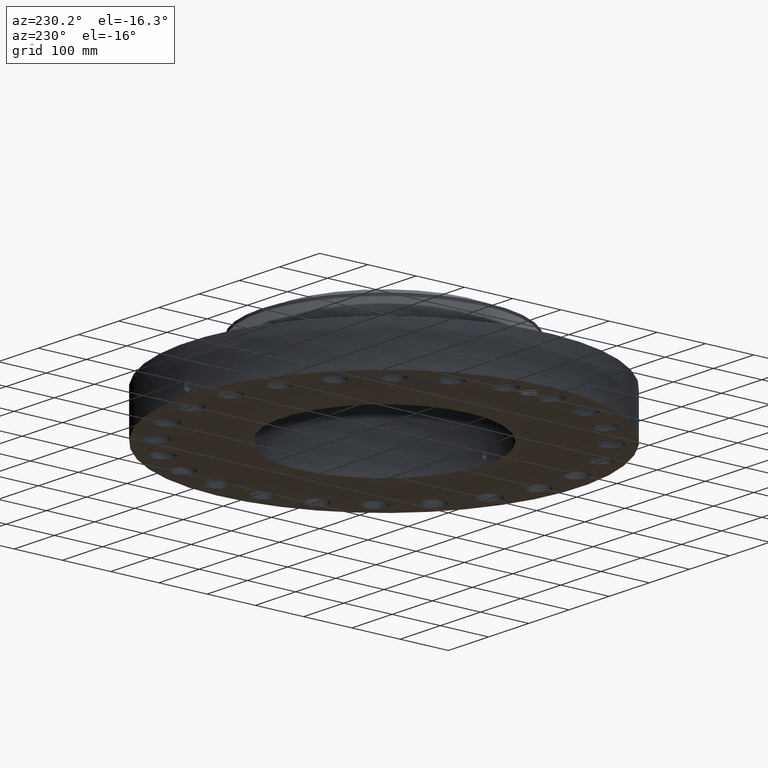
[diagram: clean part render]
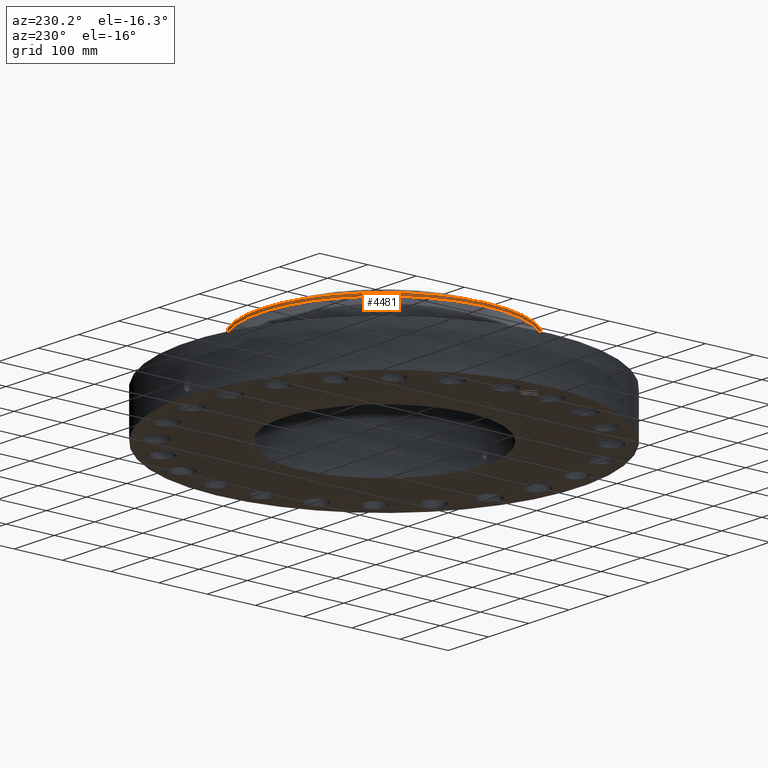
[diagram: same view with one face highlighted and labeled with its STEP entity id]
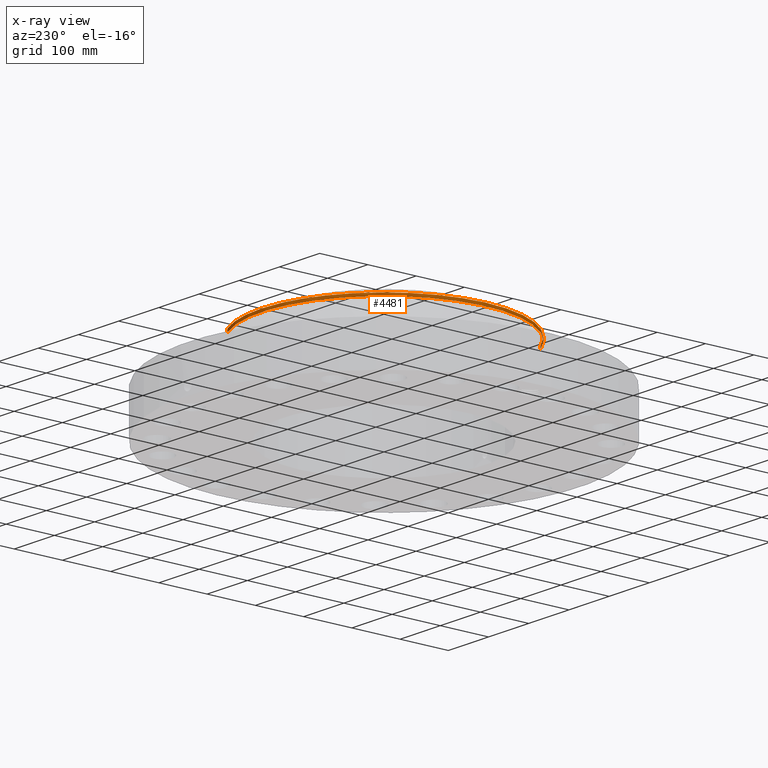
[diagram: x-ray of the same camera — body ghosted, the highlighted face saturated]
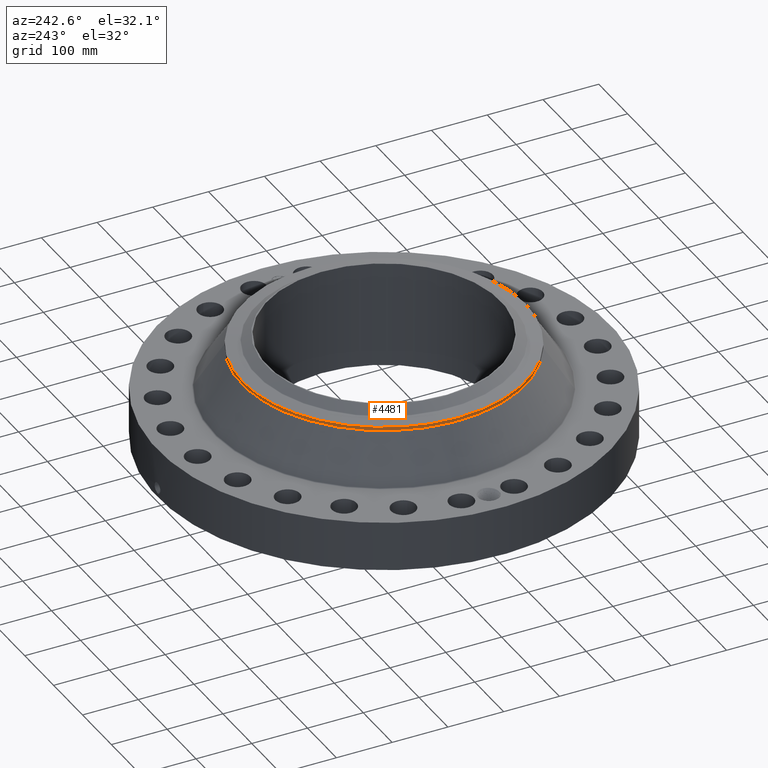
[diagram: same view with one face highlighted and labeled with its STEP entity id]
A machine part, auxiliary view. The second image highlights one B-rep face of the part: STEP entity #4481.
The next image is the same camera in x-ray: the body ghosted, the highlighted face saturated — about 2% of this face is hidden behind the body in this view.
A second angle (auxiliary view) of the same face is appended — the face is thin or edge-on in the first view.
In plain terms, the highlighted cylindrical surface (partial cylindrical patch) has radius 254 mm, axis along (0, 0, -1).
Its self-contained STEP definition (entity closure, byte-faithful):
#3645=AXIS2_PLACEMENT_3D('Circle Axis2P3D',#3643,#3644,$) ;
#4426=AXIS2_PLACEMENT_3D('Cylinder Axis2P3D',#4423,#4424,#4425) ;
#4464=AXIS2_PLACEMENT_3D('Circle Axis2P3D',#4462,#4463,$) ;
#4471=AXIS2_PLACEMENT_3D('Circle Axis2P3D',#4469,#4470,$) ;
#3621=CARTESIAN_POINT('Vertex',(4.79425538606,8.77582561894,6.82354013961)) ;
#3628=CARTESIAN_POINT('Vertex',(-4.79425538606,-8.77582561894,6.82354013961)) ;
#3643=CARTESIAN_POINT('Axis2P3D Location',(0.,0.,6.82354013961)) ;
#4423=CARTESIAN_POINT('Axis2P3D Location',(0.,0.,4.00000000002)) ;
#4428=CARTESIAN_POINT('Line Origine',(-4.79425538606,-8.77582561894,6.94165037583)) ;
#4432=CARTESIAN_POINT('Vertex',(-4.79425538606,-8.77582561894,7.05976061205)) ;
#4435=CARTESIAN_POINT('Line Origine',(4.79425538606,8.77582561894,6.94165037583)) ;
#4439=CARTESIAN_POINT('Vertex',(4.79425538606,8.77582561894,7.05976061205)) ;
#4462=CARTESIAN_POINT('Axis2P3D Location',(0.,0.,7.05976061205)) ;
#4466=CARTESIAN_POINT('Vertex',(-4.79425538606,8.77582561894,7.05976061205)) ;
#4469=CARTESIAN_POINT('Axis2P3D Location',(0.,0.,7.05976061205)) ;
#3644=DIRECTION('Axis2P3D Direction',(0.,0.,-0.0393700787402)) ;
#4424=DIRECTION('Axis2P3D Direction',(0.,0.,-0.0393700787402)) ;
#4425=DIRECTION('Axis2P3D XDirection',(-0.0188750212049,-0.0345504945626,0.)) ;
#4429=DIRECTION('Vector Direction',(0.,0.,-0.0393700787402)) ;
#4436=DIRECTION('Vector Direction',(0.,0.,-0.0393700787402)) ;
#4463=DIRECTION('Axis2P3D Direction',(0.,0.,-0.0393700787402)) ;
#4470=DIRECTION('Axis2P3D Direction',(0.,0.,-0.0393700787402)) ;
#4430=VECTOR('Line Direction',#4429,0.0393700787402) ;
#4437=VECTOR('Line Direction',#4436,0.0393700787402) ;
#4475=ORIENTED_EDGE('',*,*,#4441,.F.) ;
#4476=ORIENTED_EDGE('',*,*,#3647,.F.) ;
#4477=ORIENTED_EDGE('',*,*,#4434,.T.) ;
#4478=ORIENTED_EDGE('',*,*,#4468,.F.) ;
#4479=ORIENTED_EDGE('',*,*,#4473,.T.) ;
#4481=ADVANCED_FACE('PartBody',(#4480),#4427,.T.) ;
#3646=CIRCLE('generated circle',#3645,10.) ;
#4465=CIRCLE('generated circle',#4464,10.) ;
#4472=CIRCLE('generated circle',#4471,10.) ;
#4427=CYLINDRICAL_SURFACE('generated cylinder',#4426,10.) ;
#3647=EDGE_CURVE('',#3629,#3622,#3646,.T.) ;
#4434=EDGE_CURVE('',#3629,#4433,#4431,.F.) ;
#4441=EDGE_CURVE('',#3622,#4440,#4438,.F.) ;
#4468=EDGE_CURVE('',#4467,#4433,#4465,.F.) ;
#4473=EDGE_CURVE('',#4467,#4440,#4472,.T.) ;
#4474=EDGE_LOOP('',(#4475,#4476,#4477,#4478,#4479)) ;
#4480=FACE_OUTER_BOUND('',#4474,.T.) ;
#4431=LINE('Line',#4428,#4430) ;
#4438=LINE('Line',#4435,#4437) ;
#3622=VERTEX_POINT('',#3621) ;
#3629=VERTEX_POINT('',#3628) ;
#4433=VERTEX_POINT('',#4432) ;
#4440=VERTEX_POINT('',#4439) ;
#4467=VERTEX_POINT('',#4466) ;